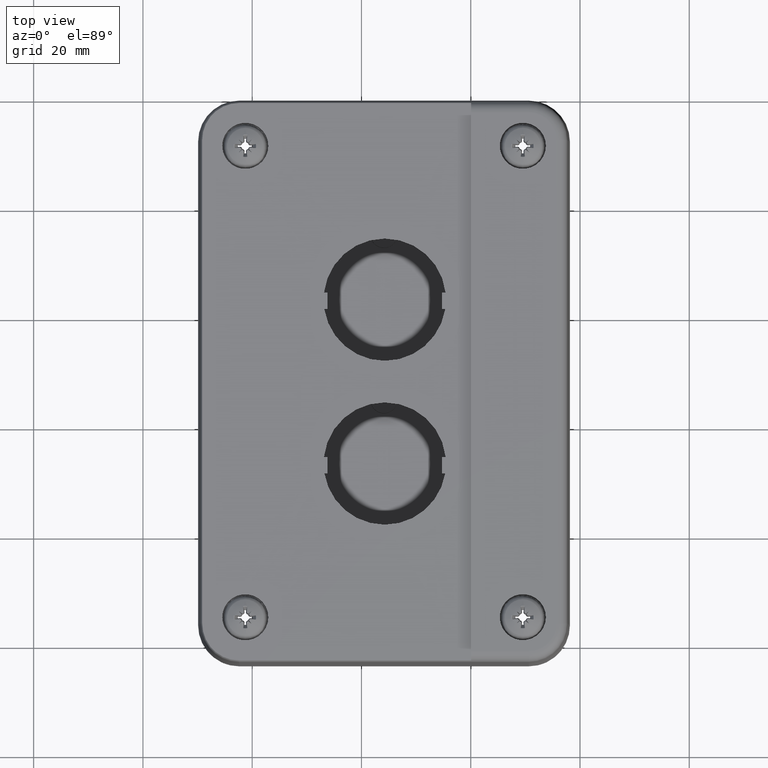
[diagram: clean part render]
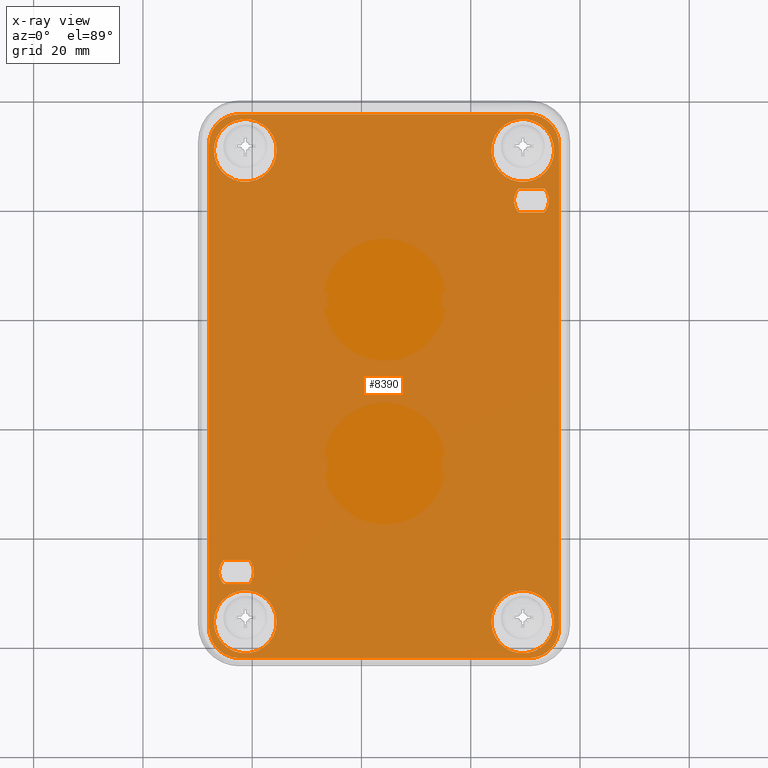
[diagram: x-ray — body ghosted, one internal face saturated and labeled with its STEP entity id]
A machine part, top view, then the same camera in x-ray: the body is ghosted and one INTERNAL B-rep face — a face not visible from any outside direction — is saturated and labeled: STEP entity #8390.
In plain terms, the highlighted planar face has unit normal (0, 0, 1).
Its self-contained STEP definition (entity closure, byte-faithful):
#122=CARTESIAN_POINT('',(-40.548713394780513,-3.877519001862886,1.500000000000000));
#123=VERTEX_POINT('',#122);
#130=CARTESIAN_POINT('',(-45.196293410229416,-3.877519001862888,1.500000000000000));
#131=VERTEX_POINT('',#130);
#132=CARTESIAN_POINT('',(-45.196293410229416,-3.877519001862888,1.500000000000000));
#133=DIRECTION('',(1.0,0.0,0.0));
#134=VECTOR('',#133,4.647580015448902);
#135=LINE('',#132,#134);
#136=EDGE_CURVE('',#131,#123,#135,.T.);
#162=CARTESIAN_POINT('',(-45.196293410229416,-8.277519001862888,1.500000000000000));
#163=VERTEX_POINT('',#162);
#164=CARTESIAN_POINT('',(-42.872503402504961,-6.077519001862886,1.500000000000000));
#165=DIRECTION('',(0.0,0.0,-1.0));
#166=DIRECTION('',(1.0,0.0,0.0));
#167=AXIS2_PLACEMENT_3D('',#164,#165,#166);
#168=CIRCLE('',#167,3.200000000000001);
#169=EDGE_CURVE('',#163,#131,#168,.T.);
#194=CARTESIAN_POINT('',(-40.548713394780513,-8.277519001862890,1.500000000000000));
#195=VERTEX_POINT('',#194);
#196=CARTESIAN_POINT('',(-40.548713394780513,-8.277519001862890,1.500000000000000));
#197=DIRECTION('',(-1.0,0.0,0.0));
#198=VECTOR('',#197,4.647580015448902);
#199=LINE('',#196,#198);
#200=EDGE_CURVE('',#195,#163,#199,.T.);
#224=CARTESIAN_POINT('',(-42.872503402504961,-6.077519001862886,1.500000000000000));
#225=DIRECTION('',(0.0,0.0,-1.0));
#226=DIRECTION('',(1.0,0.0,0.0));
#227=AXIS2_PLACEMENT_3D('',#224,#225,#226);
#228=CIRCLE('',#227,3.200000000000001);
#229=EDGE_CURVE('',#123,#195,#228,.T.);
#250=CARTESIAN_POINT('',(13.451286605219455,64.122480998137149,1.500000000000000));
#251=VERTEX_POINT('',#250);
#258=CARTESIAN_POINT('',(8.803706589770570,64.122480998137121,1.500000000000000));
#259=VERTEX_POINT('',#258);
#260=CARTESIAN_POINT('',(8.803706589770570,64.122480998137121,1.500000000000000));
#261=DIRECTION('',(1.0,0.0,0.0));
#262=VECTOR('',#261,4.647580015448884);
#263=LINE('',#260,#262);
#264=EDGE_CURVE('',#259,#251,#263,.T.);
#290=CARTESIAN_POINT('',(8.803706589770588,59.722480998137101,1.500000000000000));
#291=VERTEX_POINT('',#290);
#292=CARTESIAN_POINT('',(11.127496597495004,61.922480998137161,1.500000000000000));
#293=DIRECTION('',(0.0,0.0,-1.0));
#294=DIRECTION('',(1.0,0.0,0.0));
#295=AXIS2_PLACEMENT_3D('',#292,#293,#294);
#296=CIRCLE('',#295,3.200000000000001);
#297=EDGE_CURVE('',#291,#259,#296,.T.);
#322=CARTESIAN_POINT('',(13.451286605219472,59.722480998137151,1.500000000000000));
#323=VERTEX_POINT('',#322);
#324=CARTESIAN_POINT('',(13.451286605219472,59.722480998137151,1.500000000000000));
#325=DIRECTION('',(-1.0,0.0,0.0));
#326=VECTOR('',#325,4.647580015448884);
#327=LINE('',#324,#326);
#328=EDGE_CURVE('',#323,#291,#327,.T.);
#352=CARTESIAN_POINT('',(11.127496597495004,61.922480998137161,1.500000000000000));
#353=DIRECTION('',(0.0,0.0,-1.0));
#354=DIRECTION('',(1.0,0.0,0.0));
#355=AXIS2_PLACEMENT_3D('',#352,#353,#354);
#356=CIRCLE('',#355,3.200000000000001);
#357=EDGE_CURVE('',#251,#323,#356,.T.);
#6761=CARTESIAN_POINT('',(15.277450702821490,-15.227564896536396,1.500000000000001));
#6762=VERTEX_POINT('',#6761);
#6763=CARTESIAN_POINT('',(9.527450702821486,-15.227564896536396,1.500000000000001));
#6764=DIRECTION('',(0.0,0.0,-1.0));
#6765=DIRECTION('',(-1.0,0.0,0.0));
#6766=AXIS2_PLACEMENT_3D('',#6763,#6764,#6765);
#6767=CIRCLE('',#6766,5.750000000000001);
#6768=EDGE_CURVE('',#6762,#6762,#6767,.F.);
#6835=CARTESIAN_POINT('',(15.277450702821493,71.072435103463590,1.500000000000001));
#6836=VERTEX_POINT('',#6835);
#6837=CARTESIAN_POINT('',(9.527450702821492,71.072435103463590,1.500000000000001));
#6838=DIRECTION('',(0.0,0.0,-1.0));
#6839=DIRECTION('',(-1.0,0.0,0.0));
#6840=AXIS2_PLACEMENT_3D('',#6837,#6838,#6839);
#6841=CIRCLE('',#6840,5.750000000000001);
#6842=EDGE_CURVE('',#6836,#6836,#6841,.F.);
#6909=CARTESIAN_POINT('',(-35.522549297178514,71.072435103463619,1.500000000000001));
#6910=VERTEX_POINT('',#6909);
#6911=CARTESIAN_POINT('',(-41.272549297178514,71.072435103463619,1.500000000000001));
#6912=DIRECTION('',(0.0,0.0,-1.0));
#6913=DIRECTION('',(-1.0,0.0,0.0));
#6914=AXIS2_PLACEMENT_3D('',#6911,#6912,#6913);
#6915=CIRCLE('',#6914,5.750000000000001);
#6916=EDGE_CURVE('',#6910,#6910,#6915,.F.);
#6983=CARTESIAN_POINT('',(-35.522549297178500,-15.227564896536432,1.500000000000001));
#6984=VERTEX_POINT('',#6983);
#6985=CARTESIAN_POINT('',(-41.272549297178500,-15.227564896536432,1.500000000000001));
#6986=DIRECTION('',(0.0,0.0,-1.0));
#6987=DIRECTION('',(-1.0,0.0,0.0));
#6988=AXIS2_PLACEMENT_3D('',#6985,#6986,#6987);
#6989=CIRCLE('',#6988,5.750000000000001);
#6990=EDGE_CURVE('',#6984,#6984,#6989,.F.);
#7776=CARTESIAN_POINT('',(10.627450702821495,-21.853519001862864,1.500000000000000));
#7777=VERTEX_POINT('',#7776);
#7784=CARTESIAN_POINT('',(-42.372549297178494,-21.853519001862889,1.500000000000000));
#7785=VERTEX_POINT('',#7784);
#7786=CARTESIAN_POINT('',(10.627450702821495,-21.853519001862864,1.500000000000000));
#7787=DIRECTION('',(-1.0,0.0,0.0));
#7788=VECTOR('',#7787,52.999999999999986);
#7789=LINE('',#7786,#7788);
#7790=EDGE_CURVE('',#7785,#7777,#7789,.F.);
#7888=CARTESIAN_POINT('',(16.153404808147958,72.172435103463599,1.500000000000000));
#7889=VERTEX_POINT('',#7888);
#7896=CARTESIAN_POINT('',(16.153404808147961,-16.327564896536401,1.500000000000000));
#7897=VERTEX_POINT('',#7896);
#7898=CARTESIAN_POINT('',(16.153404808147958,72.172435103463599,1.500000000000000));
#7899=DIRECTION('',(0.0,-1.0,0.0));
#7900=VECTOR('',#7899,88.500000000000000);
#7901=LINE('',#7898,#7900);
#7902=EDGE_CURVE('',#7897,#7889,#7901,.F.);
#7973=CARTESIAN_POINT('',(-42.372549297178530,77.698389208790076,1.500000000000000));
#7974=VERTEX_POINT('',#7973);
#7981=CARTESIAN_POINT('',(10.627450702821491,77.698389208790061,1.500000000000000));
#7982=VERTEX_POINT('',#7981);
#7983=CARTESIAN_POINT('',(-42.372549297178530,77.698389208790076,1.500000000000000));
#7984=DIRECTION('',(1.0,0.0,0.0));
#7985=VECTOR('',#7984,53.000000000000021);
#7986=LINE('',#7983,#7985);
#7987=EDGE_CURVE('',#7982,#7974,#7986,.F.);
#8085=CARTESIAN_POINT('',(-47.898503402504957,-16.327564896536426,1.500000000000000));
#8086=VERTEX_POINT('',#8085);
#8093=CARTESIAN_POINT('',(-47.898503402504993,72.172435103463599,1.500000000000000));
#8094=VERTEX_POINT('',#8093);
#8095=CARTESIAN_POINT('',(-47.898503402504957,-16.327564896536426,1.500000000000000));
#8096=DIRECTION('',(0.0,1.0,0.0));
#8097=VECTOR('',#8096,88.500000000000028);
#8098=LINE('',#8095,#8097);
#8099=EDGE_CURVE('',#8094,#8086,#8098,.F.);
#8268=CARTESIAN_POINT('',(10.627450702821491,72.172435103463599,1.500000000000000));
#8269=DIRECTION('',(0.0,0.0,-1.0));
#8270=DIRECTION('',(1.0,0.0,0.0));
#8271=AXIS2_PLACEMENT_3D('',#8268,#8269,#8270);
#8272=CIRCLE('',#8271,5.525954105326473);
#8273=EDGE_CURVE('',#7889,#7982,#8272,.F.);
#8292=CARTESIAN_POINT('',(10.627450702821495,-16.327564896536401,1.500000000000000));
#8293=DIRECTION('',(0.0,0.0,-1.0));
#8294=DIRECTION('',(0.0,-1.0,0.0));
#8295=AXIS2_PLACEMENT_3D('',#8292,#8293,#8294);
#8296=CIRCLE('',#8295,5.525954105326450);
#8297=EDGE_CURVE('',#7777,#7897,#8296,.F.);
#8316=CARTESIAN_POINT('',(-42.372549297178480,-16.327564896536412,1.500000000000000));
#8317=DIRECTION('',(0.0,0.0,-1.0));
#8318=DIRECTION('',(-1.0,0.0,0.0));
#8319=AXIS2_PLACEMENT_3D('',#8316,#8317,#8318);
#8320=CIRCLE('',#8319,5.525954105326484);
#8321=EDGE_CURVE('',#8086,#7785,#8320,.F.);
#8340=CARTESIAN_POINT('',(-42.372549297178530,72.172435103463599,1.500000000000000));
#8341=DIRECTION('',(0.0,0.0,-1.0));
#8342=DIRECTION('',(0.0,1.0,0.0));
#8343=AXIS2_PLACEMENT_3D('',#8340,#8341,#8342);
#8344=CIRCLE('',#8343,5.525954105326480);
#8345=EDGE_CURVE('',#7974,#8094,#8344,.F.);
#8351=CARTESIAN_POINT('',(-15.872549297178523,27.922435103463616,1.500000000000000));
#8352=DIRECTION('',(0.0,0.0,1.0));
#8353=DIRECTION('',(1.0,0.0,0.0));
#8354=AXIS2_PLACEMENT_3D('',#8351,#8352,#8353);
#8355=PLANE('',#8354);
#8356=ORIENTED_EDGE('',*,*,#8345,.T.);
#8357=ORIENTED_EDGE('',*,*,#8099,.T.);
#8358=ORIENTED_EDGE('',*,*,#8321,.T.);
#8359=ORIENTED_EDGE('',*,*,#7790,.T.);
#8360=ORIENTED_EDGE('',*,*,#8297,.T.);
#8361=ORIENTED_EDGE('',*,*,#7902,.T.);
#8362=ORIENTED_EDGE('',*,*,#8273,.T.);
#8363=ORIENTED_EDGE('',*,*,#7987,.T.);
#8364=EDGE_LOOP('',(#8356,#8357,#8358,#8359,#8360,#8361,#8362,#8363));
#8365=FACE_OUTER_BOUND('',#8364,.T.);
#8366=ORIENTED_EDGE('',*,*,#200,.T.);
#8367=ORIENTED_EDGE('',*,*,#169,.T.);
#8368=ORIENTED_EDGE('',*,*,#136,.T.);
#8369=ORIENTED_EDGE('',*,*,#229,.T.);
#8370=EDGE_LOOP('',(#8366,#8367,#8368,#8369));
#8371=FACE_BOUND('',#8370,.T.);
#8372=ORIENTED_EDGE('',*,*,#328,.T.);
#8373=ORIENTED_EDGE('',*,*,#297,.T.);
#8374=ORIENTED_EDGE('',*,*,#264,.T.);
#8375=ORIENTED_EDGE('',*,*,#357,.T.);
#8376=EDGE_LOOP('',(#8372,#8373,#8374,#8375));
#8377=FACE_BOUND('',#8376,.T.);
#8378=ORIENTED_EDGE('',*,*,#6990,.F.);
#8379=EDGE_LOOP('',(#8378));
#8380=FACE_BOUND('',#8379,.T.);
#8381=ORIENTED_EDGE('',*,*,#6916,.F.);
#8382=EDGE_LOOP('',(#8381));
#8383=FACE_BOUND('',#8382,.T.);
#8384=ORIENTED_EDGE('',*,*,#6842,.F.);
#8385=EDGE_LOOP('',(#8384));
#8386=FACE_BOUND('',#8385,.T.);
#8387=ORIENTED_EDGE('',*,*,#6768,.F.);
#8388=EDGE_LOOP('',(#8387));
#8389=FACE_BOUND('',#8388,.T.);
#8390=ADVANCED_FACE('',(#8365,#8371,#8377,#8380,#8383,#8386,#8389),#8355,.T.);